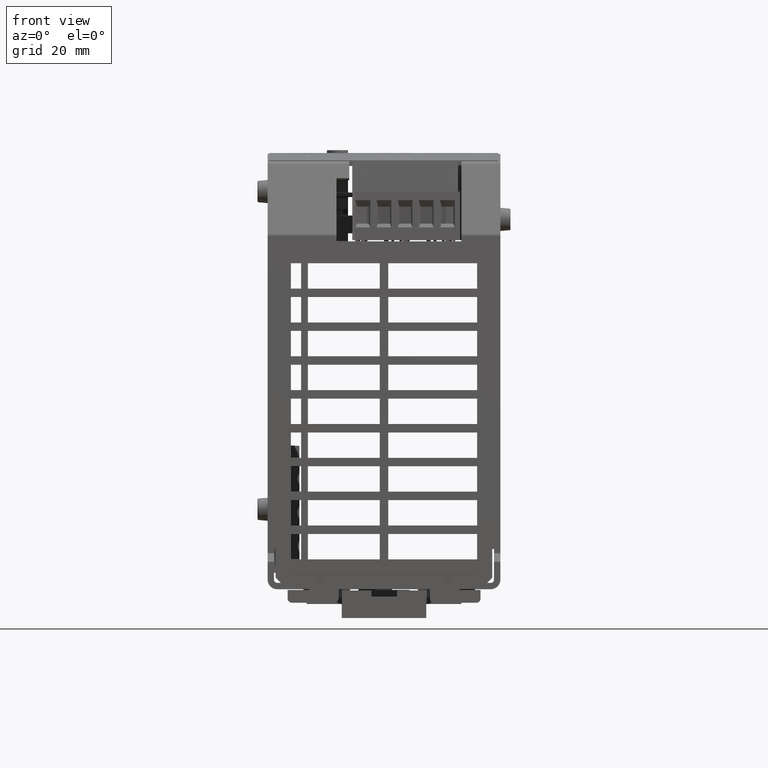
[diagram: clean part render]
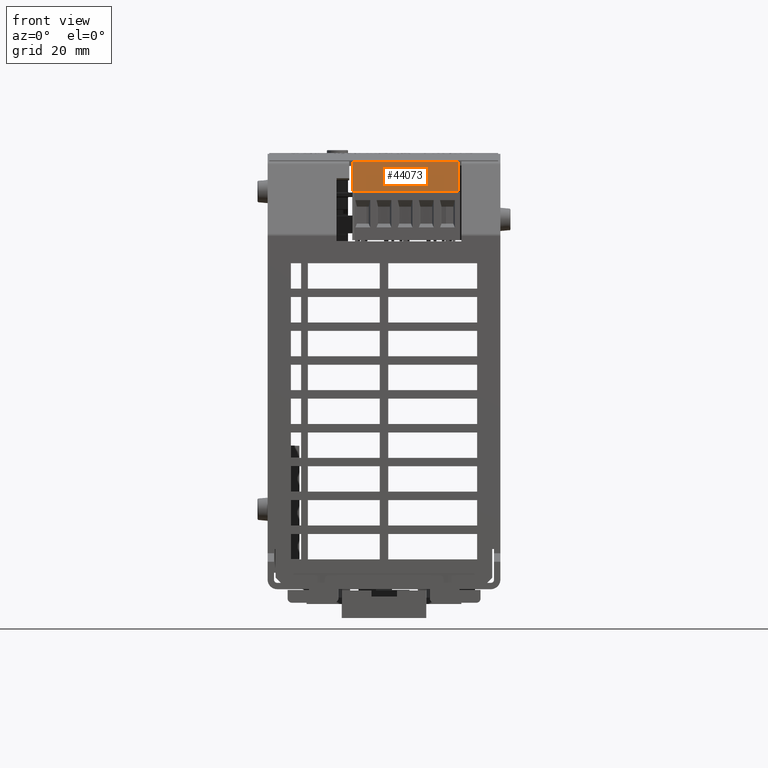
[diagram: same view with one face highlighted and labeled with its STEP entity id]
A machine part, front view. The second image highlights one B-rep face of the part: STEP entity #44073.
In plain terms, the highlighted planar face has unit normal (0, -0.9962, 0.0872).
Its self-contained STEP definition (entity closure, byte-faithful):
#43838=CARTESIAN_POINT('',(-0.295586614173163,-2.047070866141733,3.701204724409452));
#43839=VERTEX_POINT('',#43838);
#43846=CARTESIAN_POINT('',(-0.295586614173163,-2.022615373581339,3.980732283464569));
#43847=VERTEX_POINT('',#43846);
#43848=CARTESIAN_POINT('',(-0.295586614173163,-2.022615373581339,3.980732283464569));
#43849=DIRECTION('',(0.0,-0.087155742747651,-0.996194698091746));
#43850=VECTOR('',#43849,0.280595308919597);
#43851=LINE('',#43848,#43850);
#43852=EDGE_CURVE('',#43847,#43839,#43851,.T.);
#44016=CARTESIAN_POINT('',(-0.275901574803085,-2.047070866141733,3.701204724409452));
#44017=VERTEX_POINT('',#44016);
#44018=CARTESIAN_POINT('',(-0.295586614173163,-2.047070866141733,3.701204724409452));
#44019=DIRECTION('',(1.0,0.0,0.0));
#44020=VECTOR('',#44019,0.019685039370079);
#44021=LINE('',#44018,#44020);
#44022=EDGE_CURVE('',#43839,#44017,#44021,.T.);
#44042=CARTESIAN_POINT('',(-0.295586614173163,-2.047070866141733,3.701204724409452));
#44043=DIRECTION('',(0.0,-0.996194698091745,0.087155742747664));
#44044=DIRECTION('',(1.0,0.0,0.0));
#44045=AXIS2_PLACEMENT_3D('',#44042,#44043,#44044);
#44046=PLANE('',#44045);
#44047=ORIENTED_EDGE('',*,*,#44022,.T.);
#44048=CARTESIAN_POINT('',(0.688665354330774,-2.047070866141733,3.701204724409452));
#44049=VERTEX_POINT('',#44048);
#44050=CARTESIAN_POINT('',(0.688665354330774,-2.047070866141733,3.701204724409452));
#44051=DIRECTION('',(-1.0,0.0,0.0));
#44052=VECTOR('',#44051,0.964566929133858);
#44053=LINE('',#44050,#44052);
#44054=EDGE_CURVE('',#44049,#44017,#44053,.T.);
#44055=ORIENTED_EDGE('',*,*,#44054,.F.);
#44056=CARTESIAN_POINT('',(0.688665354330774,-2.022615373581339,3.980732283464569));
#44057=VERTEX_POINT('',#44056);
#44058=CARTESIAN_POINT('',(0.688665354330774,-2.022615373581339,3.980732283464569));
#44059=DIRECTION('',(0.0,-0.087155742747651,-0.996194698091746));
#44060=VECTOR('',#44059,0.280595308919597);
#44061=LINE('',#44058,#44060);
#44062=EDGE_CURVE('',#44057,#44049,#44061,.T.);
#44063=ORIENTED_EDGE('',*,*,#44062,.F.);
#44064=CARTESIAN_POINT('',(0.688665354330774,-2.022615373581339,3.980732283464569));
#44065=DIRECTION('',(-1.0,0.0,0.0));
#44066=VECTOR('',#44065,0.984251968503937);
#44067=LINE('',#44064,#44066);
#44068=EDGE_CURVE('',#44057,#43847,#44067,.T.);
#44069=ORIENTED_EDGE('',*,*,#44068,.T.);
#44070=ORIENTED_EDGE('',*,*,#43852,.T.);
#44071=EDGE_LOOP('',(#44047,#44055,#44063,#44069,#44070));
#44072=FACE_OUTER_BOUND('',#44071,.T.);
#44073=ADVANCED_FACE('',(#44072),#44046,.T.);